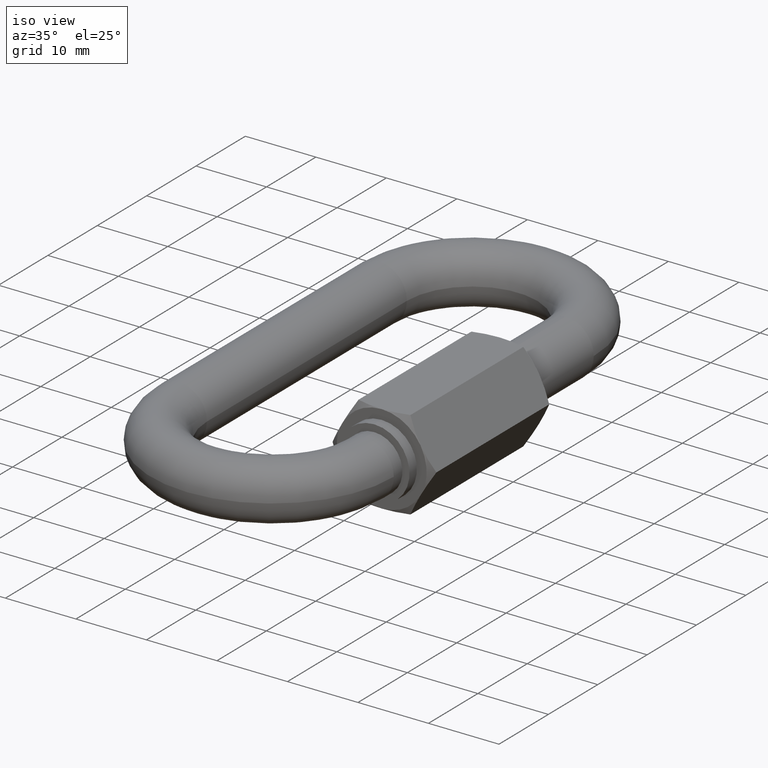
[diagram: clean part render]
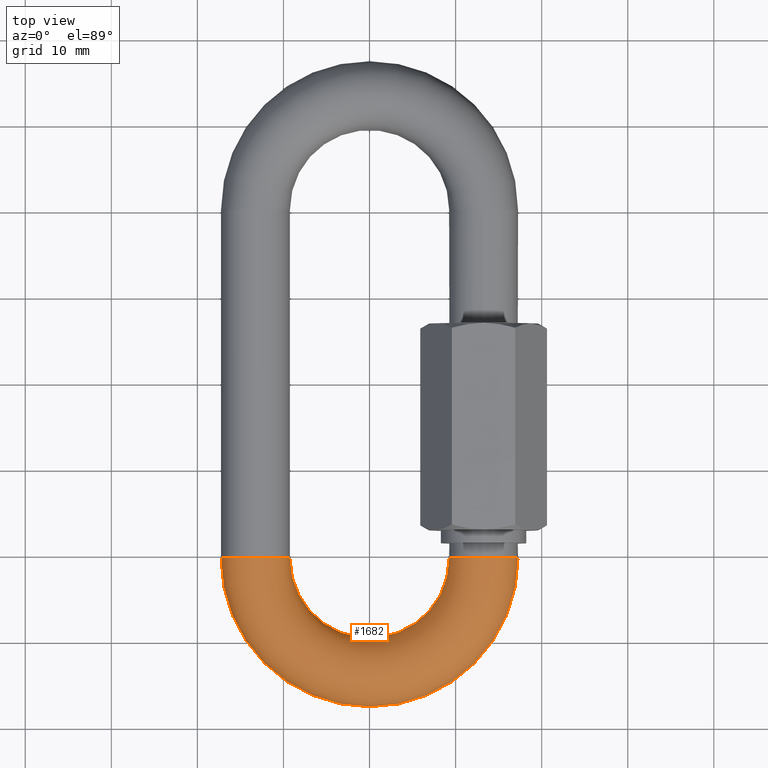
[diagram: tour spotlight — one face highlighted and labeled with its STEP entity id]
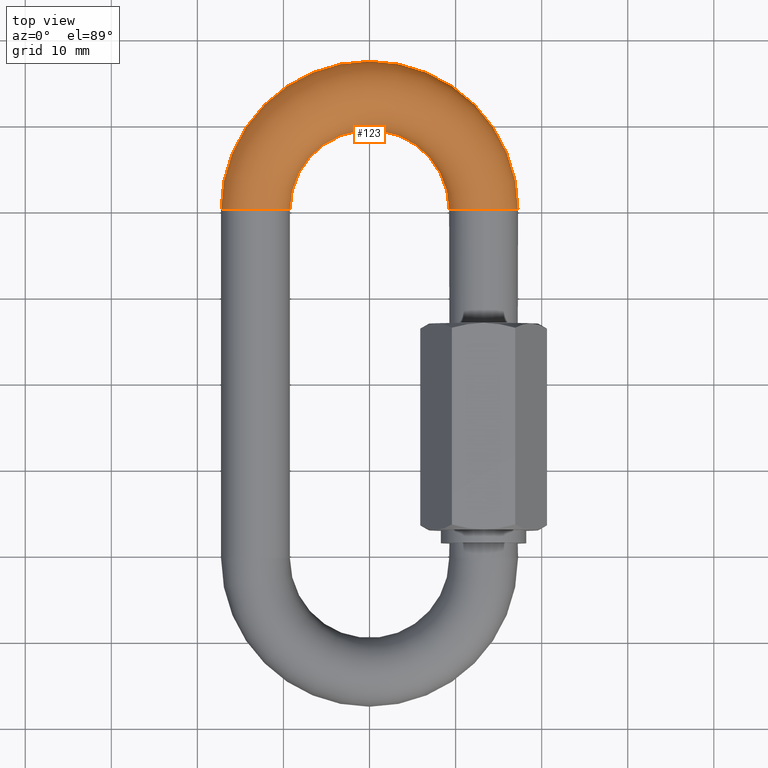
[diagram: tour spotlight — one face highlighted and labeled with its STEP entity id]
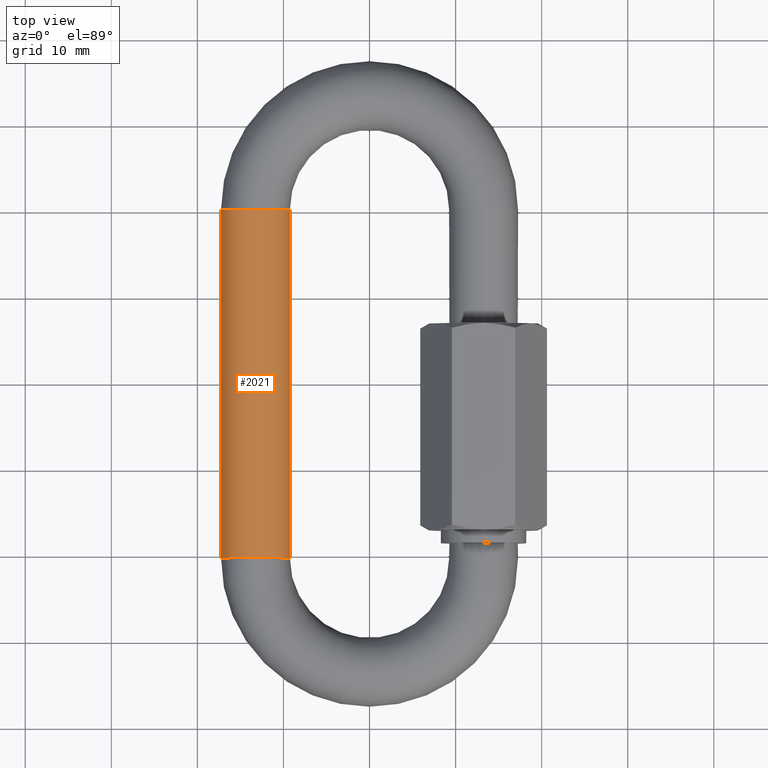
[diagram: tour spotlight — one face highlighted and labeled with its STEP entity id]
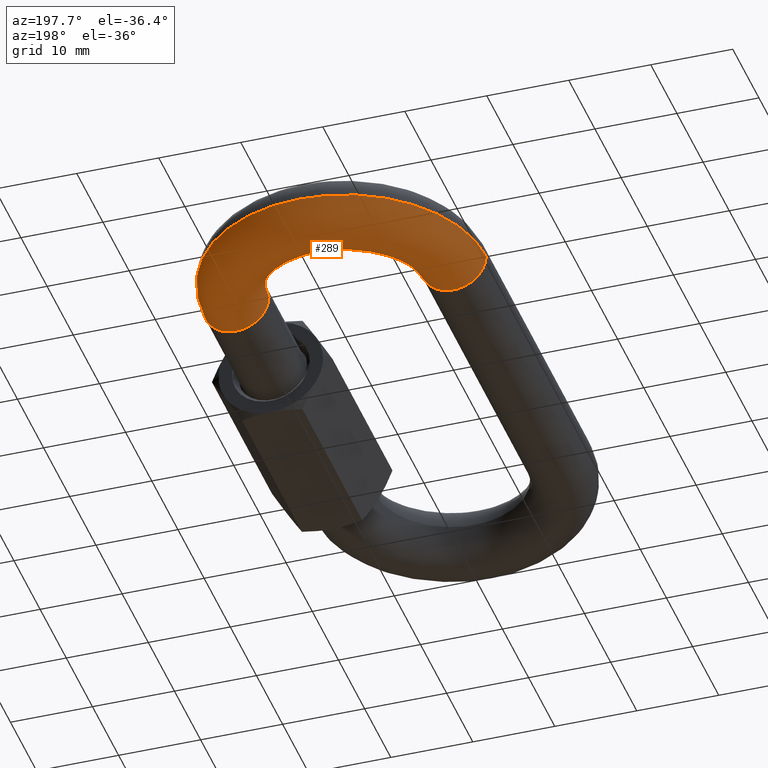
[diagram: tour spotlight — one face highlighted and labeled with its STEP entity id]
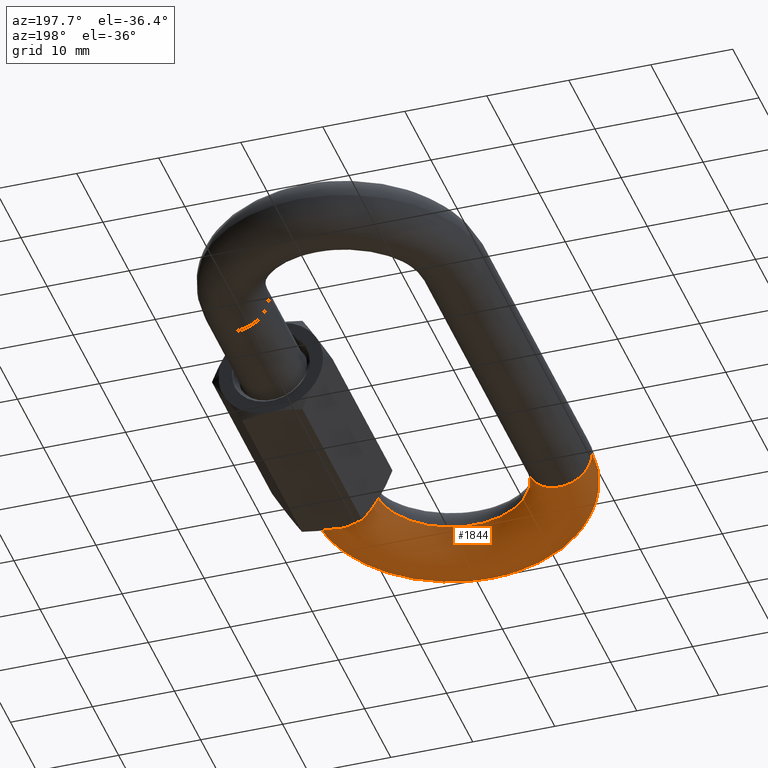
[diagram: tour spotlight — one face highlighted and labeled with its STEP entity id]
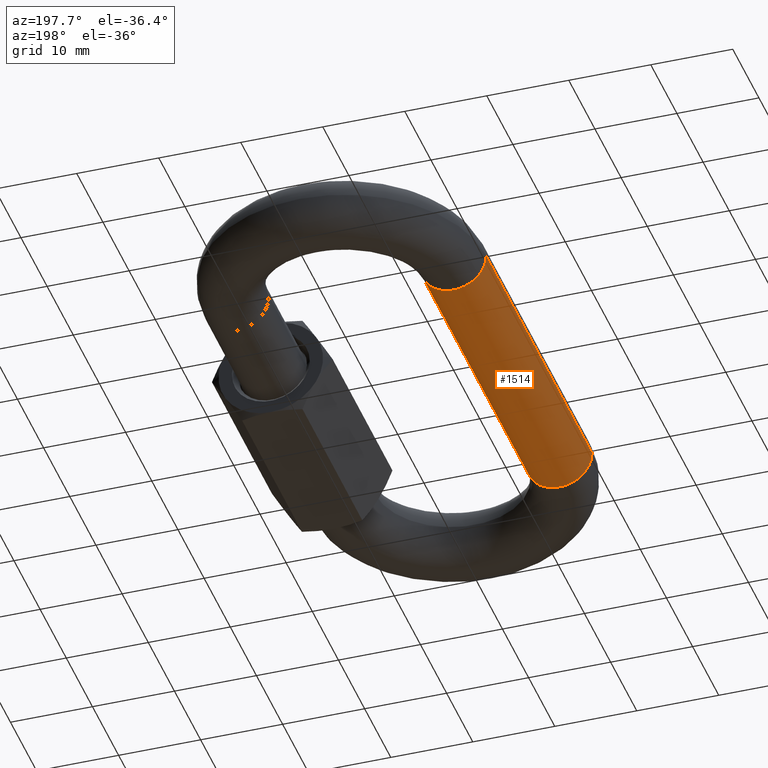
[diagram: tour spotlight — one face highlighted and labeled with its STEP entity id]
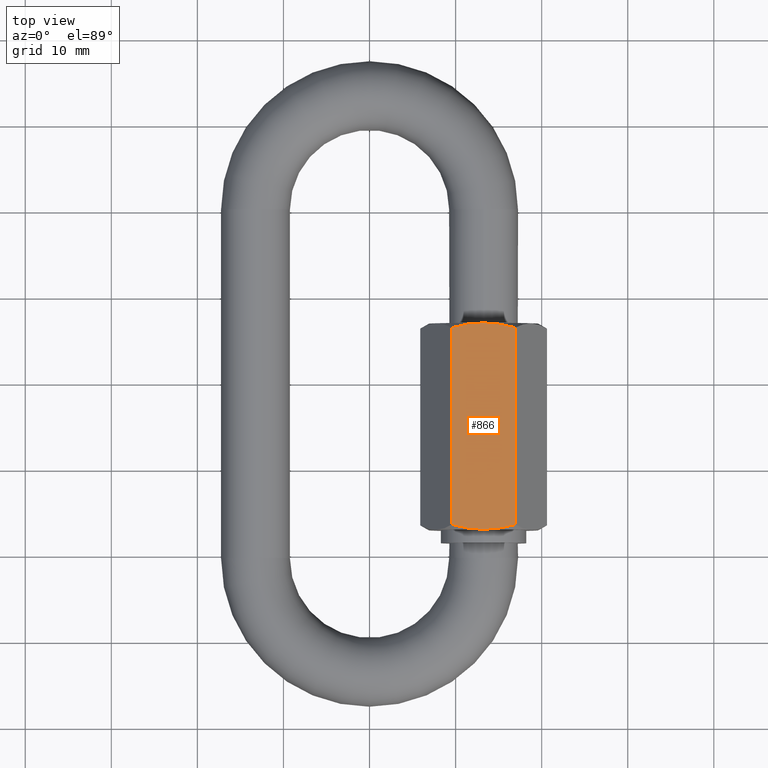
[diagram: tour spotlight — one face highlighted and labeled with its STEP entity id]
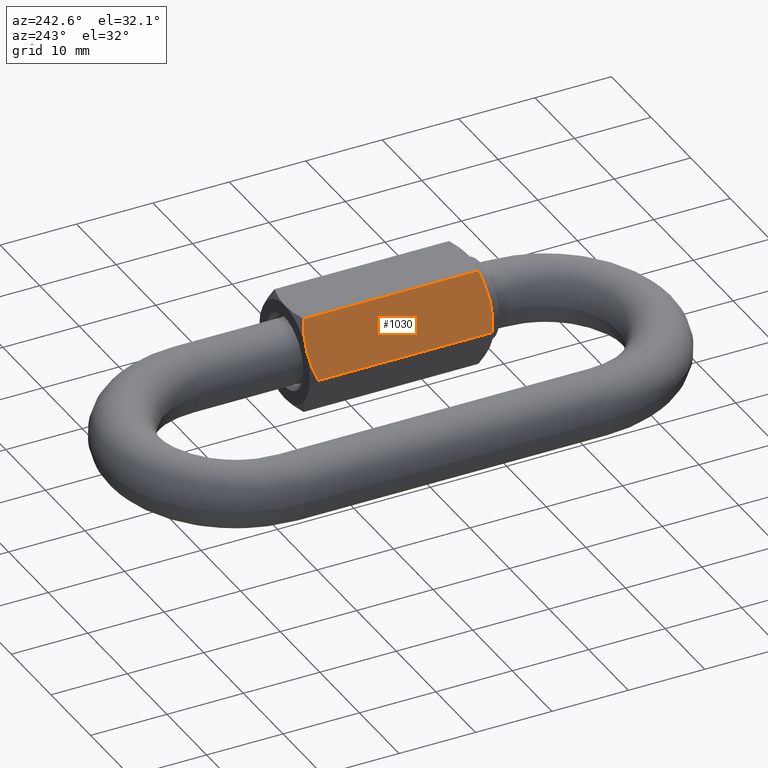
[diagram: tour spotlight — one face highlighted and labeled with its STEP entity id]
A machine part: a face-by-face anatomy tour. The part has 60 B-rep faces; the first image is the clean iso view, then the 8 largest visible faces are spotlighted one at a time (largest first), each with its STEP entity span.

Face 1 — top view, entity #1682. In plain terms, the highlighted toroidal blend (fillet) surface has major radius 13.25 mm and minor (blend) radius 4 mm.
Definition (entity closure, byte-faithful):
#55 = AXIS2_PLACEMENT_3D ( 'NONE', #1453, #986, #63 ) ;
#63 = DIRECTION ( 'NONE',  ( 0.0000000000000000000, 0.0000000000000000000, 1.000000000000000000 ) ) ;
#78 = FACE_OUTER_BOUND ( 'NONE', #727, .T. ) ;
#79 = CARTESIAN_POINT ( 'NONE',  ( 13.25000000000000900, -20.24999999999961300, 3.999999999999997300 ) ) ;
#91 = CARTESIAN_POINT ( 'NONE',  ( -5.204170427930421300E-015, -20.24999999999999600, -4.898587196589409900E-016 ) ) ;
#98 = EDGE_CURVE ( 'NONE', #592, #542, #1393, .T. ) ;
#103 = DIRECTION ( 'NONE',  ( 0.0000000000000000000, 0.0000000000000000000, 1.000000000000000000 ) ) ;
#149 = AXIS2_PLACEMENT_3D ( 'NONE', #1882, #1245, #924 ) ;
#152 = ORIENTED_EDGE ( 'NONE', *, *, #596, .F. ) ;
#227 = CARTESIAN_POINT ( 'NONE',  ( 17.25000000000000700, -20.24999999999949600, 0.0000000000000000000 ) ) ;
#260 = AXIS2_PLACEMENT_3D ( 'NONE', #700, #103, #1967 ) ;
#336 = CIRCLE ( 'NONE', #55, 3.999999999999997300 ) ;
#396 = DIRECTION ( 'NONE',  ( 0.0000000000000000000, 0.0000000000000000000, 1.000000000000000000 ) ) ;
#418 = CARTESIAN_POINT ( 'NONE',  ( 13.25000000000000900, -20.24999999999961300, 0.0000000000000000000 ) ) ;
#470 = DIRECTION ( 'NONE',  ( -2.906495849027466200E-014, 1.000000000000000000, 0.0000000000000000000 ) ) ;
#519 = TOROIDAL_SURFACE ( 'NONE', #149, 13.25000000000001400, 3.999999999999997300 ) ;
#542 = VERTEX_POINT ( 'NONE', #227 ) ;
#592 = VERTEX_POINT ( 'NONE', #1502 ) ;
#596 = EDGE_CURVE ( 'NONE', #640, #607, #1832, .T. ) ;
#607 = VERTEX_POINT ( 'NONE', #79 ) ;
#640 = VERTEX_POINT ( 'NONE', #1496 ) ;
#700 = CARTESIAN_POINT ( 'NONE',  ( -5.204170427930421300E-015, -20.24999999999999600, 0.0000000000000000000 ) ) ;
#712 = DIRECTION ( 'NONE',  ( 1.000000000000000000, 0.0000000000000000000, 0.0000000000000000000 ) ) ;
#727 = EDGE_LOOP ( 'NONE', ( #1004, #934, #1441, #152, #1734 ) ) ;
#750 = DIRECTION ( 'NONE',  ( 0.0000000000000000000, 0.0000000000000000000, 1.000000000000000000 ) ) ;
#775 = AXIS2_PLACEMENT_3D ( 'NONE', #91, #396, #712 ) ;
#883 = AXIS2_PLACEMENT_3D ( 'NONE', #911, #470, #750 ) ;
#911 = CARTESIAN_POINT ( 'NONE',  ( 13.25000000000000900, -20.24999999999961300, 0.0000000000000000000 ) ) ;
#924 = DIRECTION ( 'NONE',  ( 1.000000000000000000, 0.0000000000000000000, 0.0000000000000000000 ) ) ;
#934 = ORIENTED_EDGE ( 'NONE', *, *, #98, .T. ) ;
#986 = DIRECTION ( 'NONE',  ( 1.453247924513733100E-014, -1.000000000000000000, 0.0000000000000000000 ) ) ;
#1004 = ORIENTED_EDGE ( 'NONE', *, *, #1864, .T. ) ;
#1013 = VERTEX_POINT ( 'NONE', #1695 ) ;
#1189 = DIRECTION ( 'NONE',  ( 0.0000000000000000000, 0.0000000000000000000, 1.000000000000000000 ) ) ;
#1245 = DIRECTION ( 'NONE',  ( 0.0000000000000000000, 0.0000000000000000000, 1.000000000000000000 ) ) ;
#1393 = CIRCLE ( 'NONE', #260, 17.25000000000001400 ) ;
#1432 = AXIS2_PLACEMENT_3D ( 'NONE', #418, #1815, #1189 ) ;
#1441 = ORIENTED_EDGE ( 'NONE', *, *, #1654, .F. ) ;
#1453 = CARTESIAN_POINT ( 'NONE',  ( -13.25000000000002000, -20.25000000000018800, 0.0000000000000000000 ) ) ;
#1469 = CIRCLE ( 'NONE', #775, 9.250000000000016000 ) ;
#1496 = CARTESIAN_POINT ( 'NONE',  ( 9.250000000000012400, -20.24999999999973000, -4.898587196589410900E-016 ) ) ;
#1502 = CARTESIAN_POINT ( 'NONE',  ( -17.25000000000001400, -20.25000000000024900, 4.898587196589419700E-016 ) ) ;
#1619 = CIRCLE ( 'NONE', #883, 3.999999999999997300 ) ;
#1654 = EDGE_CURVE ( 'NONE', #607, #542, #1619, .T. ) ;
#1682 = ADVANCED_FACE ( 'NONE', ( #78 ), #519, .T. ) ;
#1695 = CARTESIAN_POINT ( 'NONE',  ( -9.250000000000021300, -20.25000000000012800, 0.0000000000000000000 ) ) ;
#1734 = ORIENTED_EDGE ( 'NONE', *, *, #2002, .F. ) ;
#1815 = DIRECTION ( 'NONE',  ( -2.906495849027466200E-014, 1.000000000000000000, 0.0000000000000000000 ) ) ;
#1832 = CIRCLE ( 'NONE', #1432, 3.999999999999997300 ) ;
#1864 = EDGE_CURVE ( 'NONE', #1013, #592, #336, .T. ) ;
#1882 = CARTESIAN_POINT ( 'NONE',  ( -5.204170427930421300E-015, -20.24999999999999600, 0.0000000000000000000 ) ) ;
#1967 = DIRECTION ( 'NONE',  ( 1.000000000000000000, 0.0000000000000000000, 0.0000000000000000000 ) ) ;
#2002 = EDGE_CURVE ( 'NONE', #1013, #640, #1469, .T. ) ;

Face 2 — top view, entity #123. In plain terms, the highlighted toroidal blend (fillet) surface has major radius 13.25 mm and minor (blend) radius 4 mm.
Definition (entity closure, byte-faithful):
#96 = DIRECTION ( 'NONE',  ( 0.0000000000000000000, 0.0000000000000000000, 1.000000000000000000 ) ) ;
#123 = ADVANCED_FACE ( 'NONE', ( #563 ), #252, .T. ) ;
#131 = EDGE_CURVE ( 'NONE', #1099, #1159, #393, .T. ) ;
#190 = CARTESIAN_POINT ( 'NONE',  ( -5.204170427930421300E-015, 20.24999999999999600, 0.0000000000000000000 ) ) ;
#202 = VERTEX_POINT ( 'NONE', #1866 ) ;
#213 = CARTESIAN_POINT ( 'NONE',  ( 9.249999999999998200, 20.24999999999999300, -4.898587196589408900E-016 ) ) ;
#244 = DIRECTION ( 'NONE',  ( 0.0000000000000000000, 0.0000000000000000000, 1.000000000000000000 ) ) ;
#247 = AXIS2_PLACEMENT_3D ( 'NONE', #710, #1631, #96 ) ;
#249 = CARTESIAN_POINT ( 'NONE',  ( 13.24999999999999600, 20.24999999999999300, 0.0000000000000000000 ) ) ;
#252 = TOROIDAL_SURFACE ( 'NONE', #1113, 13.25000000000000200, 3.999999999999997300 ) ;
#258 = CARTESIAN_POINT ( 'NONE',  ( -17.25000000000000400, 20.24999999999974800, 4.898587196589408900E-016 ) ) ;
#283 = ORIENTED_EDGE ( 'NONE', *, *, #131, .T. ) ;
#294 = CIRCLE ( 'NONE', #2000, 3.999999999999997300 ) ;
#358 = CIRCLE ( 'NONE', #1381, 3.999999999999997300 ) ;
#393 = CIRCLE ( 'NONE', #247, 3.999999999999997300 ) ;
#394 = DIRECTION ( 'NONE',  ( 0.0000000000000000000, 0.0000000000000000000, 1.000000000000000000 ) ) ;
#434 = EDGE_CURVE ( 'NONE', #804, #202, #497, .T. ) ;
#497 = CIRCLE ( 'NONE', #1792, 9.250000000000005300 ) ;
#563 = FACE_OUTER_BOUND ( 'NONE', #1921, .T. ) ;
#595 = VERTEX_POINT ( 'NONE', #258 ) ;
#679 = ORIENTED_EDGE ( 'NONE', *, *, #1776, .T. ) ;
#710 = CARTESIAN_POINT ( 'NONE',  ( 13.24999999999999600, 20.24999999999999300, 0.0000000000000000000 ) ) ;
#778 = DIRECTION ( 'NONE',  ( 0.0000000000000000000, 0.0000000000000000000, 1.000000000000000000 ) ) ;
#804 = VERTEX_POINT ( 'NONE', #213 ) ;
#857 = DIRECTION ( 'NONE',  ( 1.000000000000000000, 0.0000000000000000000, 0.0000000000000000000 ) ) ;
#992 = ORIENTED_EDGE ( 'NONE', *, *, #1279, .T. ) ;
#1084 = CARTESIAN_POINT ( 'NONE',  ( 13.24999999999999600, 20.24999999999999300, 3.999999999999997300 ) ) ;
#1099 = VERTEX_POINT ( 'NONE', #1084 ) ;
#1113 = AXIS2_PLACEMENT_3D ( 'NONE', #1660, #394, #857 ) ;
#1131 = CARTESIAN_POINT ( 'NONE',  ( -5.204170427930421300E-015, 20.24999999999999600, -4.898587196589409900E-016 ) ) ;
#1159 = VERTEX_POINT ( 'NONE', #1931 ) ;
#1177 = CIRCLE ( 'NONE', #1551, 17.25000000000000000 ) ;
#1279 = EDGE_CURVE ( 'NONE', #804, #1099, #294, .T. ) ;
#1282 = DIRECTION ( 'NONE',  ( 0.0000000000000000000, 0.0000000000000000000, 1.000000000000000000 ) ) ;
#1286 = ORIENTED_EDGE ( 'NONE', *, *, #1924, .F. ) ;
#1304 = DIRECTION ( 'NONE',  ( 0.0000000000000000000, 0.0000000000000000000, 1.000000000000000000 ) ) ;
#1381 = AXIS2_PLACEMENT_3D ( 'NONE', #1594, #1434, #1304 ) ;
#1434 = DIRECTION ( 'NONE',  ( 1.453247924513733100E-014, -1.000000000000000000, 0.0000000000000000000 ) ) ;
#1468 = ORIENTED_EDGE ( 'NONE', *, *, #434, .F. ) ;
#1551 = AXIS2_PLACEMENT_3D ( 'NONE', #190, #778, #1570 ) ;
#1570 = DIRECTION ( 'NONE',  ( 1.000000000000000000, 0.0000000000000000000, 0.0000000000000000000 ) ) ;
#1594 = CARTESIAN_POINT ( 'NONE',  ( -13.25000000000000700, 20.24999999999980500, 0.0000000000000000000 ) ) ;
#1599 = DIRECTION ( 'NONE',  ( 1.000000000000000000, 0.0000000000000000000, 0.0000000000000000000 ) ) ;
#1631 = DIRECTION ( 'NONE',  ( 0.0000000000000000000, 1.000000000000000000, 0.0000000000000000000 ) ) ;
#1660 = CARTESIAN_POINT ( 'NONE',  ( -5.204170427930421300E-015, 20.24999999999999600, 0.0000000000000000000 ) ) ;
#1776 = EDGE_CURVE ( 'NONE', #1159, #595, #1177, .T. ) ;
#1792 = AXIS2_PLACEMENT_3D ( 'NONE', #1131, #1282, #1599 ) ;
#1866 = CARTESIAN_POINT ( 'NONE',  ( -9.250000000000008900, 20.24999999999986500, 0.0000000000000000000 ) ) ;
#1921 = EDGE_LOOP ( 'NONE', ( #283, #679, #1286, #1468, #992 ) ) ;
#1924 = EDGE_CURVE ( 'NONE', #202, #595, #358, .T. ) ;
#1931 = CARTESIAN_POINT ( 'NONE',  ( 17.24999999999999300, 20.24999999999999300, 0.0000000000000000000 ) ) ;
#1975 = DIRECTION ( 'NONE',  ( 0.0000000000000000000, 1.000000000000000000, 0.0000000000000000000 ) ) ;
#2000 = AXIS2_PLACEMENT_3D ( 'NONE', #249, #1975, #244 ) ;

Face 3 — top view, entity #2021. In plain terms, the highlighted cylindrical surface (edge-blend (fillet) strip) has radius 4 mm, axis along (-0, -1, 0).
Definition (entity closure, byte-faithful):
#9 = ORIENTED_EDGE ( 'NONE', *, *, #1924, .T. ) ;
#55 = AXIS2_PLACEMENT_3D ( 'NONE', #1453, #986, #63 ) ;
#63 = DIRECTION ( 'NONE',  ( 0.0000000000000000000, 0.0000000000000000000, 1.000000000000000000 ) ) ;
#183 = VECTOR ( 'NONE', #1673, 1000.000000000000000 ) ;
#202 = VERTEX_POINT ( 'NONE', #1866 ) ;
#258 = CARTESIAN_POINT ( 'NONE',  ( -17.25000000000000400, 20.24999999999974800, 4.898587196589408900E-016 ) ) ;
#291 = LINE ( 'NONE', #631, #546 ) ;
#336 = CIRCLE ( 'NONE', #55, 3.999999999999997300 ) ;
#358 = CIRCLE ( 'NONE', #1381, 3.999999999999997300 ) ;
#404 = ORIENTED_EDGE ( 'NONE', *, *, #1864, .F. ) ;
#546 = VECTOR ( 'NONE', #938, 1000.000000000000000 ) ;
#592 = VERTEX_POINT ( 'NONE', #1502 ) ;
#595 = VERTEX_POINT ( 'NONE', #258 ) ;
#601 = FACE_OUTER_BOUND ( 'NONE', #1297, .T. ) ;
#631 = CARTESIAN_POINT ( 'NONE',  ( -17.25000000000000400, 20.24999999999980500, 4.898587196589409900E-016 ) ) ;
#827 = LINE ( 'NONE', #1538, #183 ) ;
#938 = DIRECTION ( 'NONE',  ( -2.998287489342629800E-016, -1.000000000000000000, 0.0000000000000000000 ) ) ;
#986 = DIRECTION ( 'NONE',  ( 1.453247924513733100E-014, -1.000000000000000000, 0.0000000000000000000 ) ) ;
#1013 = VERTEX_POINT ( 'NONE', #1695 ) ;
#1043 = EDGE_CURVE ( 'NONE', #202, #1013, #827, .T. ) ;
#1274 = AXIS2_PLACEMENT_3D ( 'NONE', #1328, #1477, #1626 ) ;
#1297 = EDGE_LOOP ( 'NONE', ( #9, #1612, #404, #1909 ) ) ;
#1304 = DIRECTION ( 'NONE',  ( 0.0000000000000000000, 0.0000000000000000000, 1.000000000000000000 ) ) ;
#1328 = CARTESIAN_POINT ( 'NONE',  ( -13.25000000000000700, 20.24999999999980500, 0.0000000000000000000 ) ) ;
#1381 = AXIS2_PLACEMENT_3D ( 'NONE', #1594, #1434, #1304 ) ;
#1434 = DIRECTION ( 'NONE',  ( 1.453247924513733100E-014, -1.000000000000000000, 0.0000000000000000000 ) ) ;
#1453 = CARTESIAN_POINT ( 'NONE',  ( -13.25000000000002000, -20.25000000000018800, 0.0000000000000000000 ) ) ;
#1477 = DIRECTION ( 'NONE',  ( -2.998287489342629800E-016, -1.000000000000000000, 0.0000000000000000000 ) ) ;
#1502 = CARTESIAN_POINT ( 'NONE',  ( -17.25000000000001400, -20.25000000000024900, 4.898587196589419700E-016 ) ) ;
#1538 = CARTESIAN_POINT ( 'NONE',  ( -9.250000000000008900, 20.24999999999980500, 0.0000000000000000000 ) ) ;
#1594 = CARTESIAN_POINT ( 'NONE',  ( -13.25000000000000700, 20.24999999999980500, 0.0000000000000000000 ) ) ;
#1596 = CYLINDRICAL_SURFACE ( 'NONE', #1274, 3.999999999999998200 ) ;
#1612 = ORIENTED_EDGE ( 'NONE', *, *, #1797, .T. ) ;
#1626 = DIRECTION ( 'NONE',  ( 1.000000000000000000, 0.0000000000000000000, 0.0000000000000000000 ) ) ;
#1673 = DIRECTION ( 'NONE',  ( -2.998287489342629800E-016, -1.000000000000000000, 0.0000000000000000000 ) ) ;
#1695 = CARTESIAN_POINT ( 'NONE',  ( -9.250000000000021300, -20.25000000000012800, 0.0000000000000000000 ) ) ;
#1797 = EDGE_CURVE ( 'NONE', #595, #592, #291, .T. ) ;
#1864 = EDGE_CURVE ( 'NONE', #1013, #592, #336, .T. ) ;
#1866 = CARTESIAN_POINT ( 'NONE',  ( -9.250000000000008900, 20.24999999999986500, 0.0000000000000000000 ) ) ;
#1909 = ORIENTED_EDGE ( 'NONE', *, *, #1043, .F. ) ;
#1924 = EDGE_CURVE ( 'NONE', #202, #595, #358, .T. ) ;
#2021 = ADVANCED_FACE ( 'NONE', ( #601 ), #1596, .T. ) ;

Face 4 — auxiliary view, entity #289. In plain terms, the highlighted toroidal blend (fillet) surface has major radius 13.25 mm and minor (blend) radius 4 mm.
Definition (entity closure, byte-faithful):
#170 = ORIENTED_EDGE ( 'NONE', *, *, #1210, .T. ) ;
#190 = CARTESIAN_POINT ( 'NONE',  ( -5.204170427930421300E-015, 20.24999999999999600, 0.0000000000000000000 ) ) ;
#202 = VERTEX_POINT ( 'NONE', #1866 ) ;
#213 = CARTESIAN_POINT ( 'NONE',  ( 9.249999999999998200, 20.24999999999999300, -4.898587196589408900E-016 ) ) ;
#258 = CARTESIAN_POINT ( 'NONE',  ( -17.25000000000000400, 20.24999999999974800, 4.898587196589408900E-016 ) ) ;
#289 = ADVANCED_FACE ( 'NONE', ( #408 ), #1108, .T. ) ;
#387 = DIRECTION ( 'NONE',  ( 1.453247924513733100E-014, -1.000000000000000000, 0.0000000000000000000 ) ) ;
#391 = DIRECTION ( 'NONE',  ( 0.0000000000000000000, 0.0000000000000000000, 1.000000000000000000 ) ) ;
#408 = FACE_OUTER_BOUND ( 'NONE', #1669, .T. ) ;
#434 = EDGE_CURVE ( 'NONE', #804, #202, #497, .T. ) ;
#465 = ORIENTED_EDGE ( 'NONE', *, *, #1776, .F. ) ;
#474 = EDGE_CURVE ( 'NONE', #595, #202, #1908, .T. ) ;
#497 = CIRCLE ( 'NONE', #1792, 9.250000000000005300 ) ;
#498 = CIRCLE ( 'NONE', #1762, 3.999999999999997300 ) ;
#499 = CARTESIAN_POINT ( 'NONE',  ( 13.24999999999999600, 20.24999999999999300, 0.0000000000000000000 ) ) ;
#513 = VERTEX_POINT ( 'NONE', #1142 ) ;
#569 = AXIS2_PLACEMENT_3D ( 'NONE', #767, #1885, #941 ) ;
#595 = VERTEX_POINT ( 'NONE', #258 ) ;
#678 = ORIENTED_EDGE ( 'NONE', *, *, #1156, .T. ) ;
#731 = AXIS2_PLACEMENT_3D ( 'NONE', #1807, #387, #391 ) ;
#767 = CARTESIAN_POINT ( 'NONE',  ( -5.204170427930421300E-015, 20.24999999999999600, 0.0000000000000000000 ) ) ;
#778 = DIRECTION ( 'NONE',  ( 0.0000000000000000000, 0.0000000000000000000, 1.000000000000000000 ) ) ;
#804 = VERTEX_POINT ( 'NONE', #213 ) ;
#808 = DIRECTION ( 'NONE',  ( 0.0000000000000000000, 0.0000000000000000000, 1.000000000000000000 ) ) ;
#941 = DIRECTION ( 'NONE',  ( 1.000000000000000000, 0.0000000000000000000, 0.0000000000000000000 ) ) ;
#1108 = TOROIDAL_SURFACE ( 'NONE', #569, 13.25000000000000200, 3.999999999999997300 ) ;
#1131 = CARTESIAN_POINT ( 'NONE',  ( -5.204170427930421300E-015, 20.24999999999999600, -4.898587196589409900E-016 ) ) ;
#1142 = CARTESIAN_POINT ( 'NONE',  ( 13.24999999999999600, 20.24999999999999300, -3.999999999999997300 ) ) ;
#1156 = EDGE_CURVE ( 'NONE', #1159, #513, #2013, .T. ) ;
#1159 = VERTEX_POINT ( 'NONE', #1931 ) ;
#1177 = CIRCLE ( 'NONE', #1551, 17.25000000000000000 ) ;
#1210 = EDGE_CURVE ( 'NONE', #513, #804, #498, .T. ) ;
#1281 = DIRECTION ( 'NONE',  ( 0.0000000000000000000, 1.000000000000000000, 0.0000000000000000000 ) ) ;
#1282 = DIRECTION ( 'NONE',  ( 0.0000000000000000000, 0.0000000000000000000, 1.000000000000000000 ) ) ;
#1435 = DIRECTION ( 'NONE',  ( 0.0000000000000000000, 1.000000000000000000, 0.0000000000000000000 ) ) ;
#1551 = AXIS2_PLACEMENT_3D ( 'NONE', #190, #778, #1570 ) ;
#1570 = DIRECTION ( 'NONE',  ( 1.000000000000000000, 0.0000000000000000000, 0.0000000000000000000 ) ) ;
#1589 = CARTESIAN_POINT ( 'NONE',  ( 13.24999999999999600, 20.24999999999999300, 0.0000000000000000000 ) ) ;
#1599 = DIRECTION ( 'NONE',  ( 1.000000000000000000, 0.0000000000000000000, 0.0000000000000000000 ) ) ;
#1661 = ORIENTED_EDGE ( 'NONE', *, *, #474, .F. ) ;
#1669 = EDGE_LOOP ( 'NONE', ( #465, #678, #170, #1677, #1661 ) ) ;
#1677 = ORIENTED_EDGE ( 'NONE', *, *, #434, .T. ) ;
#1736 = AXIS2_PLACEMENT_3D ( 'NONE', #1589, #1435, #1775 ) ;
#1762 = AXIS2_PLACEMENT_3D ( 'NONE', #499, #1281, #808 ) ;
#1775 = DIRECTION ( 'NONE',  ( 0.0000000000000000000, 0.0000000000000000000, 1.000000000000000000 ) ) ;
#1776 = EDGE_CURVE ( 'NONE', #1159, #595, #1177, .T. ) ;
#1792 = AXIS2_PLACEMENT_3D ( 'NONE', #1131, #1282, #1599 ) ;
#1807 = CARTESIAN_POINT ( 'NONE',  ( -13.25000000000000700, 20.24999999999980500, 0.0000000000000000000 ) ) ;
#1866 = CARTESIAN_POINT ( 'NONE',  ( -9.250000000000008900, 20.24999999999986500, 0.0000000000000000000 ) ) ;
#1885 = DIRECTION ( 'NONE',  ( 0.0000000000000000000, 0.0000000000000000000, 1.000000000000000000 ) ) ;
#1908 = CIRCLE ( 'NONE', #731, 3.999999999999997300 ) ;
#1931 = CARTESIAN_POINT ( 'NONE',  ( 17.24999999999999300, 20.24999999999999300, 0.0000000000000000000 ) ) ;
#2013 = CIRCLE ( 'NONE', #1736, 3.999999999999997300 ) ;

Face 5 — auxiliary view, entity #1844. In plain terms, the highlighted toroidal blend (fillet) surface has major radius 13.25 mm and minor (blend) radius 4 mm.
Definition (entity closure, byte-faithful):
#61 = EDGE_LOOP ( 'NONE', ( #1373, #1572, #786, #1671, #1098 ) ) ;
#91 = CARTESIAN_POINT ( 'NONE',  ( -5.204170427930421300E-015, -20.24999999999999600, -4.898587196589409900E-016 ) ) ;
#98 = EDGE_CURVE ( 'NONE', #592, #542, #1393, .T. ) ;
#103 = DIRECTION ( 'NONE',  ( 0.0000000000000000000, 0.0000000000000000000, 1.000000000000000000 ) ) ;
#111 = DIRECTION ( 'NONE',  ( -2.906495849027466200E-014, 1.000000000000000000, 0.0000000000000000000 ) ) ;
#117 = CARTESIAN_POINT ( 'NONE',  ( -13.25000000000002000, -20.25000000000018800, 0.0000000000000000000 ) ) ;
#167 = CARTESIAN_POINT ( 'NONE',  ( -5.204170427930421300E-015, -20.24999999999999600, 0.0000000000000000000 ) ) ;
#175 = EDGE_CURVE ( 'NONE', #542, #2003, #1574, .T. ) ;
#227 = CARTESIAN_POINT ( 'NONE',  ( 17.25000000000000700, -20.24999999999949600, 0.0000000000000000000 ) ) ;
#231 = EDGE_CURVE ( 'NONE', #592, #1013, #738, .T. ) ;
#260 = AXIS2_PLACEMENT_3D ( 'NONE', #700, #103, #1967 ) ;
#287 = DIRECTION ( 'NONE',  ( 0.0000000000000000000, 0.0000000000000000000, 1.000000000000000000 ) ) ;
#335 = DIRECTION ( 'NONE',  ( 1.000000000000000000, 0.0000000000000000000, 0.0000000000000000000 ) ) ;
#396 = DIRECTION ( 'NONE',  ( 0.0000000000000000000, 0.0000000000000000000, 1.000000000000000000 ) ) ;
#458 = TOROIDAL_SURFACE ( 'NONE', #511, 13.25000000000001400, 3.999999999999997300 ) ;
#492 = DIRECTION ( 'NONE',  ( 0.0000000000000000000, 0.0000000000000000000, 1.000000000000000000 ) ) ;
#511 = AXIS2_PLACEMENT_3D ( 'NONE', #167, #1406, #335 ) ;
#542 = VERTEX_POINT ( 'NONE', #227 ) ;
#557 = AXIS2_PLACEMENT_3D ( 'NONE', #1377, #111, #742 ) ;
#592 = VERTEX_POINT ( 'NONE', #1502 ) ;
#640 = VERTEX_POINT ( 'NONE', #1496 ) ;
#670 = CARTESIAN_POINT ( 'NONE',  ( 13.25000000000000900, -20.24999999999961300, 0.0000000000000000000 ) ) ;
#700 = CARTESIAN_POINT ( 'NONE',  ( -5.204170427930421300E-015, -20.24999999999999600, 0.0000000000000000000 ) ) ;
#712 = DIRECTION ( 'NONE',  ( 1.000000000000000000, 0.0000000000000000000, 0.0000000000000000000 ) ) ;
#738 = CIRCLE ( 'NONE', #1577, 3.999999999999997300 ) ;
#742 = DIRECTION ( 'NONE',  ( 0.0000000000000000000, 0.0000000000000000000, 1.000000000000000000 ) ) ;
#775 = AXIS2_PLACEMENT_3D ( 'NONE', #91, #396, #712 ) ;
#786 = ORIENTED_EDGE ( 'NONE', *, *, #2002, .T. ) ;
#907 = DIRECTION ( 'NONE',  ( 1.453247924513733100E-014, -1.000000000000000000, 0.0000000000000000000 ) ) ;
#963 = DIRECTION ( 'NONE',  ( -2.906495849027466200E-014, 1.000000000000000000, 0.0000000000000000000 ) ) ;
#1013 = VERTEX_POINT ( 'NONE', #1695 ) ;
#1098 = ORIENTED_EDGE ( 'NONE', *, *, #175, .F. ) ;
#1138 = CARTESIAN_POINT ( 'NONE',  ( 13.25000000000000900, -20.24999999999961300, -3.999999999999997300 ) ) ;
#1232 = EDGE_CURVE ( 'NONE', #2003, #640, #1805, .T. ) ;
#1306 = FACE_OUTER_BOUND ( 'NONE', #61, .T. ) ;
#1373 = ORIENTED_EDGE ( 'NONE', *, *, #98, .F. ) ;
#1377 = CARTESIAN_POINT ( 'NONE',  ( 13.25000000000000900, -20.24999999999961300, 0.0000000000000000000 ) ) ;
#1393 = CIRCLE ( 'NONE', #260, 17.25000000000001400 ) ;
#1406 = DIRECTION ( 'NONE',  ( 0.0000000000000000000, 0.0000000000000000000, 1.000000000000000000 ) ) ;
#1469 = CIRCLE ( 'NONE', #775, 9.250000000000016000 ) ;
#1496 = CARTESIAN_POINT ( 'NONE',  ( 9.250000000000012400, -20.24999999999973000, -4.898587196589410900E-016 ) ) ;
#1502 = CARTESIAN_POINT ( 'NONE',  ( -17.25000000000001400, -20.25000000000024900, 4.898587196589419700E-016 ) ) ;
#1572 = ORIENTED_EDGE ( 'NONE', *, *, #231, .T. ) ;
#1574 = CIRCLE ( 'NONE', #557, 3.999999999999997300 ) ;
#1577 = AXIS2_PLACEMENT_3D ( 'NONE', #117, #907, #287 ) ;
#1671 = ORIENTED_EDGE ( 'NONE', *, *, #1232, .F. ) ;
#1695 = CARTESIAN_POINT ( 'NONE',  ( -9.250000000000021300, -20.25000000000012800, 0.0000000000000000000 ) ) ;
#1805 = CIRCLE ( 'NONE', #1911, 3.999999999999997300 ) ;
#1844 = ADVANCED_FACE ( 'NONE', ( #1306 ), #458, .T. ) ;
#1911 = AXIS2_PLACEMENT_3D ( 'NONE', #670, #963, #492 ) ;
#1967 = DIRECTION ( 'NONE',  ( 1.000000000000000000, 0.0000000000000000000, 0.0000000000000000000 ) ) ;
#2002 = EDGE_CURVE ( 'NONE', #1013, #640, #1469, .T. ) ;
#2003 = VERTEX_POINT ( 'NONE', #1138 ) ;

Face 6 — auxiliary view, entity #1514. In plain terms, the highlighted cylindrical surface (edge-blend (fillet) strip) has radius 4 mm, axis along (-0, -1, 0).
Definition (entity closure, byte-faithful):
#49 = ORIENTED_EDGE ( 'NONE', *, *, #474, .T. ) ;
#117 = CARTESIAN_POINT ( 'NONE',  ( -13.25000000000002000, -20.25000000000018800, 0.0000000000000000000 ) ) ;
#183 = VECTOR ( 'NONE', #1673, 1000.000000000000000 ) ;
#202 = VERTEX_POINT ( 'NONE', #1866 ) ;
#231 = EDGE_CURVE ( 'NONE', #592, #1013, #738, .T. ) ;
#258 = CARTESIAN_POINT ( 'NONE',  ( -17.25000000000000400, 20.24999999999974800, 4.898587196589408900E-016 ) ) ;
#287 = DIRECTION ( 'NONE',  ( 0.0000000000000000000, 0.0000000000000000000, 1.000000000000000000 ) ) ;
#291 = LINE ( 'NONE', #631, #546 ) ;
#314 = CYLINDRICAL_SURFACE ( 'NONE', #776, 3.999999999999998200 ) ;
#387 = DIRECTION ( 'NONE',  ( 1.453247924513733100E-014, -1.000000000000000000, 0.0000000000000000000 ) ) ;
#391 = DIRECTION ( 'NONE',  ( 0.0000000000000000000, 0.0000000000000000000, 1.000000000000000000 ) ) ;
#430 = DIRECTION ( 'NONE',  ( 1.000000000000000000, 0.0000000000000000000, 0.0000000000000000000 ) ) ;
#462 = FACE_OUTER_BOUND ( 'NONE', #1265, .T. ) ;
#474 = EDGE_CURVE ( 'NONE', #595, #202, #1908, .T. ) ;
#546 = VECTOR ( 'NONE', #938, 1000.000000000000000 ) ;
#592 = VERTEX_POINT ( 'NONE', #1502 ) ;
#595 = VERTEX_POINT ( 'NONE', #258 ) ;
#631 = CARTESIAN_POINT ( 'NONE',  ( -17.25000000000000400, 20.24999999999980500, 4.898587196589409900E-016 ) ) ;
#731 = AXIS2_PLACEMENT_3D ( 'NONE', #1807, #387, #391 ) ;
#738 = CIRCLE ( 'NONE', #1577, 3.999999999999997300 ) ;
#776 = AXIS2_PLACEMENT_3D ( 'NONE', #1982, #1025, #430 ) ;
#827 = LINE ( 'NONE', #1538, #183 ) ;
#907 = DIRECTION ( 'NONE',  ( 1.453247924513733100E-014, -1.000000000000000000, 0.0000000000000000000 ) ) ;
#938 = DIRECTION ( 'NONE',  ( -2.998287489342629800E-016, -1.000000000000000000, 0.0000000000000000000 ) ) ;
#1013 = VERTEX_POINT ( 'NONE', #1695 ) ;
#1025 = DIRECTION ( 'NONE',  ( -2.998287489342629800E-016, -1.000000000000000000, 0.0000000000000000000 ) ) ;
#1043 = EDGE_CURVE ( 'NONE', #202, #1013, #827, .T. ) ;
#1265 = EDGE_LOOP ( 'NONE', ( #1710, #49, #1344, #1724 ) ) ;
#1344 = ORIENTED_EDGE ( 'NONE', *, *, #1043, .T. ) ;
#1502 = CARTESIAN_POINT ( 'NONE',  ( -17.25000000000001400, -20.25000000000024900, 4.898587196589419700E-016 ) ) ;
#1514 = ADVANCED_FACE ( 'NONE', ( #462 ), #314, .T. ) ;
#1538 = CARTESIAN_POINT ( 'NONE',  ( -9.250000000000008900, 20.24999999999980500, 0.0000000000000000000 ) ) ;
#1577 = AXIS2_PLACEMENT_3D ( 'NONE', #117, #907, #287 ) ;
#1673 = DIRECTION ( 'NONE',  ( -2.998287489342629800E-016, -1.000000000000000000, 0.0000000000000000000 ) ) ;
#1695 = CARTESIAN_POINT ( 'NONE',  ( -9.250000000000021300, -20.25000000000012800, 0.0000000000000000000 ) ) ;
#1710 = ORIENTED_EDGE ( 'NONE', *, *, #1797, .F. ) ;
#1724 = ORIENTED_EDGE ( 'NONE', *, *, #231, .F. ) ;
#1797 = EDGE_CURVE ( 'NONE', #595, #592, #291, .T. ) ;
#1807 = CARTESIAN_POINT ( 'NONE',  ( -13.25000000000000700, 20.24999999999980500, 0.0000000000000000000 ) ) ;
#1866 = CARTESIAN_POINT ( 'NONE',  ( -9.250000000000008900, 20.24999999999986500, 0.0000000000000000000 ) ) ;
#1908 = CIRCLE ( 'NONE', #731, 3.999999999999997300 ) ;
#1982 = CARTESIAN_POINT ( 'NONE',  ( -13.25000000000000700, 20.24999999999980500, 0.0000000000000000000 ) ) ;

Face 7 — top view, entity #866. In plain terms, the highlighted planar face has unit normal (0, 0, -1).
Definition (entity closure, byte-faithful):
#27 = LINE ( 'NONE', #1498, #1226 ) ;
#33 = ORIENTED_EDGE ( 'NONE', *, *, #145, .F. ) ;
#69 = DIRECTION ( 'NONE',  ( 0.5000000000000003300, 0.0000000000000000000, 0.8660254037844383700 ) ) ;
#76 = DIRECTION ( 'NONE',  ( -0.8660254037844384900, 0.0000000000000000000, 0.5000000000000004400 ) ) ;
#84 = CARTESIAN_POINT ( 'NONE',  ( 6.756918241076252100, -11.74761330462050200, -1.046674303867006300 ) ) ;
#125 = EDGE_CURVE ( 'NONE', #1120, #1850, #657, .T. ) ;
#133 = CARTESIAN_POINT ( 'NONE',  ( 4.743372722930298700, -11.89588583083778400, -4.534237444648389300 ) ) ;
#145 = EDGE_CURVE ( 'NONE', #839, #1396, #27, .T. ) ;
#177 = EDGE_LOOP ( 'NONE', ( #413, #993, #1107, #33, #591, #1346 ) ) ;
#197 = DIRECTION ( 'NONE',  ( -0.0000000000000000000, -1.000000000000000000, -0.0000000000000000000 ) ) ;
#232 = CARTESIAN_POINT ( 'NONE',  ( 7.361215932167730200, 11.43060796608387100, 3.896368338776263900E-016 ) ) ;
#243 = EDGE_CURVE ( 'NONE', #1850, #1396, #1362, .T. ) ;
#248 = CARTESIAN_POINT ( 'NONE',  ( 5.207378330678891700, 12.00000000000000500, -3.730556157030950000 ) ) ;
#318 = FACE_OUTER_BOUND ( 'NONE', #177, .T. ) ;
#347 = CARTESIAN_POINT ( 'NONE',  ( 7.361215932167730200, 12.00000000000000000, 8.036236675388254300E-017 ) ) ;
#413 = ORIENTED_EDGE ( 'NONE', *, *, #1176, .T. ) ;
#448 = CARTESIAN_POINT ( 'NONE',  ( 4.897506526571820700, -11.93445956315975900, -4.267269865577421900 ) ) ;
#478 = CARTESIAN_POINT ( 'NONE',  ( 3.980905701404792800, -11.60398494440873800, -5.854869065026281100 ) ) ;
#554 = CARTESIAN_POINT ( 'NONE',  ( 7.060918196846799300, 11.60398494440873100, -0.5201309349737208700 ) ) ;
#558 = CARTESIAN_POINT ( 'NONE',  ( 6.144081405867214400, -11.94573378285738000, -2.108138839198767200 ) ) ;
#565 = PLANE ( 'NONE',  #897 ) ;
#591 = ORIENTED_EDGE ( 'NONE', *, *, #884, .T. ) ;
#594 = CARTESIAN_POINT ( 'NONE',  ( 7.361215932167730200, 11.43060796608387100, 3.896368338776263900E-016 ) ) ;
#657 = B_SPLINE_CURVE_WITH_KNOTS ( 'NONE', 3,
 ( #693, #1028, #84, #558, #1019, #1180 ),
 .UNSPECIFIED., .F., .F.,
 ( 4, 2, 4 ),
 ( 2.380733146790241100E-007, 0.001862324446660187800, 0.003724410820005695800 ),
 .UNSPECIFIED. ) ;
#693 = CARTESIAN_POINT ( 'NONE',  ( 7.361215932167730200, -11.43060796608387100, -9.090533960955229200E-017 ) ) ;
#713 = CARTESIAN_POINT ( 'NONE',  ( 7.361215932167730200, 12.00000000000000000, 8.036236675388254300E-017 ) ) ;
#833 = CARTESIAN_POINT ( 'NONE',  ( 6.758115036728783700, 11.74711102147276700, -1.044601392990536200 ) ) ;
#839 = VERTEX_POINT ( 'NONE', #860 ) ;
#851 = CARTESIAN_POINT ( 'NONE',  ( 3.680607966083862400, 11.43060796608387100, -6.375000000000000000 ) ) ;
#860 = CARTESIAN_POINT ( 'NONE',  ( 3.680607966083862400, 11.43060796608387100, -6.375000000000000000 ) ) ;
#866 = ADVANCED_FACE ( 'NONE', ( #318 ), #565, .F. ) ;
#884 = EDGE_CURVE ( 'NONE', #839, #2029, #955, .T. ) ;
#897 = AXIS2_PLACEMENT_3D ( 'NONE', #713, #76, #69 ) ;
#899 = CARTESIAN_POINT ( 'NONE',  ( 4.283708861522806700, -11.74711102147276900, -5.330398607009464700 ) ) ;
#908 = VERTEX_POINT ( 'NONE', #594 ) ;
#955 = B_SPLINE_CURVE_WITH_KNOTS ( 'NONE', 3,
 ( #851, #1168, #1174, #1796, #248, #1193 ),
 .UNSPECIFIED., .F., .F.,
 ( 4, 2, 4 ),
 ( 2.380733146774796000E-007, 0.001862324446660183900, 0.003724410820005690100 ),
 .UNSPECIFIED. ) ;
#958 = CARTESIAN_POINT ( 'NONE',  ( 5.520911949125794700, -12.00000000000000000, -3.187500000000001300 ) ) ;
#993 = ORIENTED_EDGE ( 'NONE', *, *, #125, .T. ) ;
#994 = CARTESIAN_POINT ( 'NONE',  ( 5.677092722888152000, 12.00000000000000900, -2.916986964678178800 ) ) ;
#1007 = CARTESIAN_POINT ( 'NONE',  ( 6.298451175321293500, 11.89588583083778100, -1.840762555351612900 ) ) ;
#1019 = CARTESIAN_POINT ( 'NONE',  ( 5.834445567572698700, -12.00000000000000500, -2.644443842969052700 ) ) ;
#1028 = CARTESIAN_POINT ( 'NONE',  ( 7.060166630729630000, -11.60441886130907500, -0.5214326856739111000 ) ) ;
#1031 = CARTESIAN_POINT ( 'NONE',  ( 5.833973814744299900, 11.98654167839438500, -2.645260942836453700 ) ) ;
#1033 = LINE ( 'NONE', #347, #1501 ) ;
#1061 = CARTESIAN_POINT ( 'NONE',  ( 5.364731175363436600, -12.00000000000000700, -3.458013035321825200 ) ) ;
#1101 = CARTESIAN_POINT ( 'NONE',  ( 7.361215932167730200, -11.43060796608387100, -9.090533960955229200E-017 ) ) ;
#1107 = ORIENTED_EDGE ( 'NONE', *, *, #243, .T. ) ;
#1120 = VERTEX_POINT ( 'NONE', #1101 ) ;
#1168 = CARTESIAN_POINT ( 'NONE',  ( 3.981657267521965200, 11.60441886130907800, -5.853567314326087800 ) ) ;
#1174 = CARTESIAN_POINT ( 'NONE',  ( 4.284905657175341900, 11.74761330462050200, -5.328325696132994300 ) ) ;
#1176 = EDGE_CURVE ( 'NONE', #908, #1120, #1033, .T. ) ;
#1180 = CARTESIAN_POINT ( 'NONE',  ( 5.520911949125794700, -12.00000000000000000, -3.187500000000001300 ) ) ;
#1193 = CARTESIAN_POINT ( 'NONE',  ( 5.520911949125794700, 12.00000000000000000, -3.187500000000001300 ) ) ;
#1220 = CARTESIAN_POINT ( 'NONE',  ( 5.207850083507291400, -11.98654167839438500, -3.729739057163549800 ) ) ;
#1226 = VECTOR ( 'NONE', #1653, 1000.000000000000000 ) ;
#1346 = ORIENTED_EDGE ( 'NONE', *, *, #2032, .T. ) ;
#1362 = B_SPLINE_CURVE_WITH_KNOTS ( 'NONE', 3,
 ( #1368, #1061, #1220, #448, #133, #899, #478, #1414 ),
 .UNSPECIFIED., .F., .F.,
 ( 4, 2, 2, 4 ),
 ( 0.003724410820005695800, 0.004651973522984850100, 0.005579536225964004800, 0.007434661631922315200 ),
 .UNSPECIFIED. ) ;
#1368 = CARTESIAN_POINT ( 'NONE',  ( 5.520911949125794700, -12.00000000000000000, -3.187500000000001300 ) ) ;
#1396 = VERTEX_POINT ( 'NONE', #1470 ) ;
#1414 = CARTESIAN_POINT ( 'NONE',  ( 3.680607966083862900, -11.43060796608387100, -6.375000000000000000 ) ) ;
#1464 = CARTESIAN_POINT ( 'NONE',  ( 6.144317371679766100, 11.93445956315976100, -2.107730134422578900 ) ) ;
#1470 = CARTESIAN_POINT ( 'NONE',  ( 3.680607966083862900, -11.43060796608387100, -6.375000000000000000 ) ) ;
#1498 = CARTESIAN_POINT ( 'NONE',  ( 3.680607966083862900, 12.00000000000000000, -6.375000000000000000 ) ) ;
#1501 = VECTOR ( 'NONE', #197, 1000.000000000000000 ) ;
#1528 = B_SPLINE_CURVE_WITH_KNOTS ( 'NONE', 3,
 ( #1639, #994, #1031, #1464, #1007, #833, #554, #232 ),
 .UNSPECIFIED., .F., .F.,
 ( 4, 2, 2, 4 ),
 ( 0.003724410820005690100, 0.004651973522984846600, 0.005579536225964003100, 0.007434661631922317000 ),
 .UNSPECIFIED. ) ;
#1639 = CARTESIAN_POINT ( 'NONE',  ( 5.520911949125794700, 12.00000000000000000, -3.187500000000001300 ) ) ;
#1653 = DIRECTION ( 'NONE',  ( -0.0000000000000000000, -1.000000000000000000, -0.0000000000000000000 ) ) ;
#1796 = CARTESIAN_POINT ( 'NONE',  ( 4.897742492384375100, 11.94573378285737600, -4.266861160801234100 ) ) ;
#1850 = VERTEX_POINT ( 'NONE', #958 ) ;
#1962 = CARTESIAN_POINT ( 'NONE',  ( 5.520911949125794700, 12.00000000000000000, -3.187500000000001300 ) ) ;
#2029 = VERTEX_POINT ( 'NONE', #1962 ) ;
#2032 = EDGE_CURVE ( 'NONE', #2029, #908, #1528, .T. ) ;

Face 8 — auxiliary view, entity #1030. In plain terms, the highlighted planar face has unit normal (0.866, 0, -0.5).
Definition (entity closure, byte-faithful):
#6 = CARTESIAN_POINT ( 'NONE',  ( 5.207850083507296700, 11.98654167839438300, 3.729739057163548000 ) ) ;
#18 = CARTESIAN_POINT ( 'NONE',  ( 3.980905701404797700, 11.60398494440873300, 5.854869065026276700 ) ) ;
#88 = ORIENTED_EDGE ( 'NONE', *, *, #681, .T. ) ;
#195 = CARTESIAN_POINT ( 'NONE',  ( 5.834445567572702300, 12.00000000000000400, 2.644443842969050400 ) ) ;
#197 = DIRECTION ( 'NONE',  ( -0.0000000000000000000, -1.000000000000000000, -0.0000000000000000000 ) ) ;
#212 = CARTESIAN_POINT ( 'NONE',  ( 4.284905657175348100, -11.74761330462050100, 5.328325696132994300 ) ) ;
#254 = B_SPLINE_CURVE_WITH_KNOTS ( 'NONE', 3,
 ( #527, #365, #212, #810, #1128, #509 ),
 .UNSPECIFIED., .F., .F.,
 ( 4, 2, 4 ),
 ( 2.380733146774796000E-007, 0.001862324446660184200, 0.003724410820005690600 ),
 .UNSPECIFIED. ) ;
#307 = AXIS2_PLACEMENT_3D ( 'NONE', #575, #1356, #2026 ) ;
#323 = CARTESIAN_POINT ( 'NONE',  ( 4.283708861522814700, 11.74711102147276700, 5.330398607009462900 ) ) ;
#327 = EDGE_CURVE ( 'NONE', #753, #1277, #2016, .T. ) ;
#330 = CARTESIAN_POINT ( 'NONE',  ( 5.520911949125796500, 12.00000000000000000, 3.187499999999998200 ) ) ;
#347 = CARTESIAN_POINT ( 'NONE',  ( 7.361215932167730200, 12.00000000000000000, 8.036236675388254300E-017 ) ) ;
#365 = CARTESIAN_POINT ( 'NONE',  ( 3.981657267521968400, -11.60441886130907500, 5.853567314326087800 ) ) ;
#366 = CARTESIAN_POINT ( 'NONE',  ( 7.361215932167730200, 11.43060796608387100, 3.896368338776263900E-016 ) ) ;
#377 = ORIENTED_EDGE ( 'NONE', *, *, #327, .T. ) ;
#437 = CARTESIAN_POINT ( 'NONE',  ( 6.144317371679770500, -11.93445956315976100, 2.107730134422577600 ) ) ;
#446 = B_SPLINE_CURVE_WITH_KNOTS ( 'NONE', 3,
 ( #330, #1429, #6, #1878, #1413, #323, #18, #787 ),
 .UNSPECIFIED., .F., .F.,
 ( 4, 2, 2, 4 ),
 ( 0.003724410820005691400, 0.004651973522984847500, 0.005579536225964003100, 0.007434661631922311700 ),
 .UNSPECIFIED. ) ;
#479 = ORIENTED_EDGE ( 'NONE', *, *, #1176, .F. ) ;
#509 = CARTESIAN_POINT ( 'NONE',  ( 5.520911949125796500, -12.00000000000000000, 3.187499999999998200 ) ) ;
#510 = CARTESIAN_POINT ( 'NONE',  ( 6.144081405867219700, 11.94573378285737600, 2.108138839198765400 ) ) ;
#527 = CARTESIAN_POINT ( 'NONE',  ( 3.680607966083868600, -11.43060796608387100, 6.374999999999999100 ) ) ;
#555 = CARTESIAN_POINT ( 'NONE',  ( 5.520911949125796500, 12.00000000000000000, 3.187499999999998200 ) ) ;
#575 = CARTESIAN_POINT ( 'NONE',  ( 3.680607966083868600, 12.00000000000000000, 6.374999999999999100 ) ) ;
#594 = CARTESIAN_POINT ( 'NONE',  ( 7.361215932167730200, 11.43060796608387100, 3.896368338776263900E-016 ) ) ;
#610 = B_SPLINE_CURVE_WITH_KNOTS ( 'NONE', 3,
 ( #902, #1379, #1997, #437, #2014, #1680, #736, #1841 ),
 .UNSPECIFIED., .F., .F.,
 ( 4, 2, 2, 4 ),
 ( 0.003724410820005690600, 0.004651973522984845800, 0.005579536225964000500, 0.007434661631922310000 ),
 .UNSPECIFIED. ) ;
#627 = FACE_OUTER_BOUND ( 'NONE', #1201, .T. ) ;
#633 = CARTESIAN_POINT ( 'NONE',  ( 3.680607966083868600, 12.00000000000000000, 6.374999999999999100 ) ) ;
#648 = VECTOR ( 'NONE', #1390, 1000.000000000000000 ) ;
#681 = EDGE_CURVE ( 'NONE', #908, #873, #690, .T. ) ;
#690 = B_SPLINE_CURVE_WITH_KNOTS ( 'NONE', 3,
 ( #366, #1129, #816, #510, #195, #1930 ),
 .UNSPECIFIED., .F., .F.,
 ( 4, 2, 4 ),
 ( 2.380733146789777100E-007, 0.001862324446660185200, 0.003724410820005691400 ),
 .UNSPECIFIED. ) ;
#736 = CARTESIAN_POINT ( 'NONE',  ( 7.060918196846800200, -11.60398494440873300, 0.5201309349737219800 ) ) ;
#747 = CARTESIAN_POINT ( 'NONE',  ( 5.520911949125796500, -12.00000000000000000, 3.187499999999998200 ) ) ;
#753 = VERTEX_POINT ( 'NONE', #1603 ) ;
#787 = CARTESIAN_POINT ( 'NONE',  ( 3.680607966083868600, 11.43060796608387100, 6.374999999999999100 ) ) ;
#810 = CARTESIAN_POINT ( 'NONE',  ( 4.897742492384380400, -11.94573378285737600, 4.266861160801233200 ) ) ;
#816 = CARTESIAN_POINT ( 'NONE',  ( 6.756918241076250300, 11.74761330462050100, 1.046674303867006300 ) ) ;
#873 = VERTEX_POINT ( 'NONE', #555 ) ;
#902 = CARTESIAN_POINT ( 'NONE',  ( 5.520911949125796500, -12.00000000000000000, 3.187499999999998200 ) ) ;
#908 = VERTEX_POINT ( 'NONE', #594 ) ;
#915 = EDGE_CURVE ( 'NONE', #1755, #1120, #610, .T. ) ;
#966 = ORIENTED_EDGE ( 'NONE', *, *, #1913, .T. ) ;
#998 = CARTESIAN_POINT ( 'NONE',  ( 3.680607966083868600, -11.43060796608387100, 6.374999999999999100 ) ) ;
#1030 = ADVANCED_FACE ( 'NONE', ( #627 ), #2023, .F. ) ;
#1033 = LINE ( 'NONE', #347, #1501 ) ;
#1052 = ORIENTED_EDGE ( 'NONE', *, *, #1077, .T. ) ;
#1077 = EDGE_CURVE ( 'NONE', #873, #753, #446, .T. ) ;
#1101 = CARTESIAN_POINT ( 'NONE',  ( 7.361215932167730200, -11.43060796608387100, -9.090533960955229200E-017 ) ) ;
#1120 = VERTEX_POINT ( 'NONE', #1101 ) ;
#1128 = CARTESIAN_POINT ( 'NONE',  ( 5.207378330678898800, -12.00000000000000400, 3.730556157030948200 ) ) ;
#1129 = CARTESIAN_POINT ( 'NONE',  ( 7.060166630729628200, 11.60441886130907500, 0.5214326856739112100 ) ) ;
#1176 = EDGE_CURVE ( 'NONE', #908, #1120, #1033, .T. ) ;
#1201 = EDGE_LOOP ( 'NONE', ( #377, #966, #1380, #479, #88, #1052 ) ) ;
#1277 = VERTEX_POINT ( 'NONE', #998 ) ;
#1356 = DIRECTION ( 'NONE',  ( -0.8660254037844388200, 0.0000000000000000000, -0.4999999999999998300 ) ) ;
#1379 = CARTESIAN_POINT ( 'NONE',  ( 5.677092722888157400, -12.00000000000000200, 2.916986964678176100 ) ) ;
#1380 = ORIENTED_EDGE ( 'NONE', *, *, #915, .T. ) ;
#1390 = DIRECTION ( 'NONE',  ( -0.0000000000000000000, -1.000000000000000000, -0.0000000000000000000 ) ) ;
#1413 = CARTESIAN_POINT ( 'NONE',  ( 4.743372722930304000, 11.89588583083777700, 4.534237444648384900 ) ) ;
#1429 = CARTESIAN_POINT ( 'NONE',  ( 5.364731175363442800, 12.00000000000000500, 3.458013035321823500 ) ) ;
#1501 = VECTOR ( 'NONE', #197, 1000.000000000000000 ) ;
#1603 = CARTESIAN_POINT ( 'NONE',  ( 3.680607966083868600, 11.43060796608387100, 6.374999999999999100 ) ) ;
#1680 = CARTESIAN_POINT ( 'NONE',  ( 6.758115036728786300, -11.74711102147276700, 1.044601392990536900 ) ) ;
#1755 = VERTEX_POINT ( 'NONE', #747 ) ;
#1841 = CARTESIAN_POINT ( 'NONE',  ( 7.361215932167730200, -11.43060796608387100, -9.090533960955229200E-017 ) ) ;
#1878 = CARTESIAN_POINT ( 'NONE',  ( 4.897506526571828700, 11.93445956315975900, 4.267269865577421100 ) ) ;
#1913 = EDGE_CURVE ( 'NONE', #1277, #1755, #254, .T. ) ;
#1930 = CARTESIAN_POINT ( 'NONE',  ( 5.520911949125796500, 12.00000000000000000, 3.187499999999998200 ) ) ;
#1997 = CARTESIAN_POINT ( 'NONE',  ( 5.833973814744302500, -11.98654167839438700, 2.645260942836451100 ) ) ;
#2014 = CARTESIAN_POINT ( 'NONE',  ( 6.298451175321293500, -11.89588583083777700, 1.840762555351612000 ) ) ;
#2016 = LINE ( 'NONE', #633, #648 ) ;
#2023 = PLANE ( 'NONE',  #307 ) ;
#2026 = DIRECTION ( 'NONE',  ( -0.4999999999999997800, 0.0000000000000000000, 0.8660254037844387100 ) ) ;